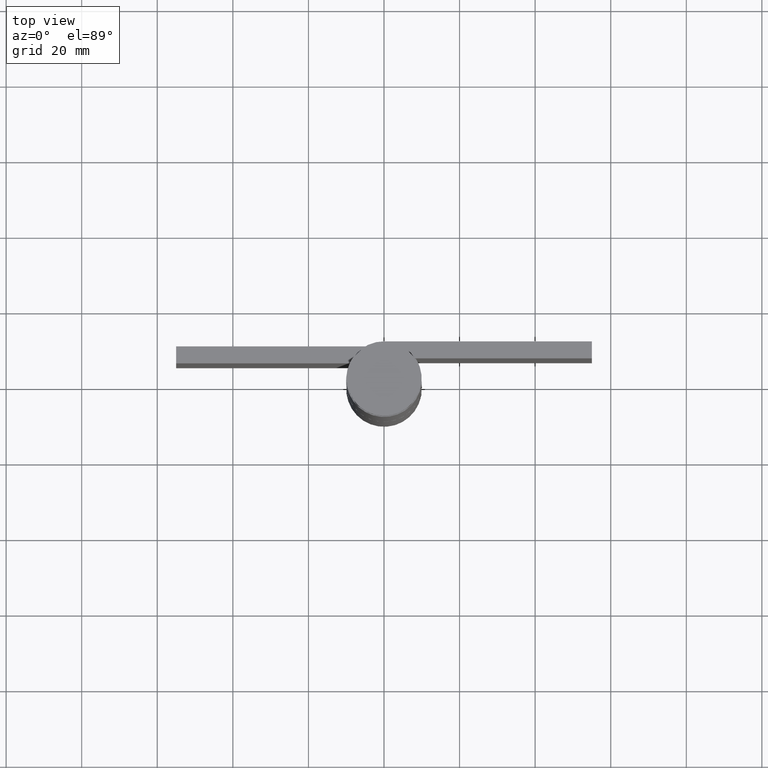
[diagram: clean part render]
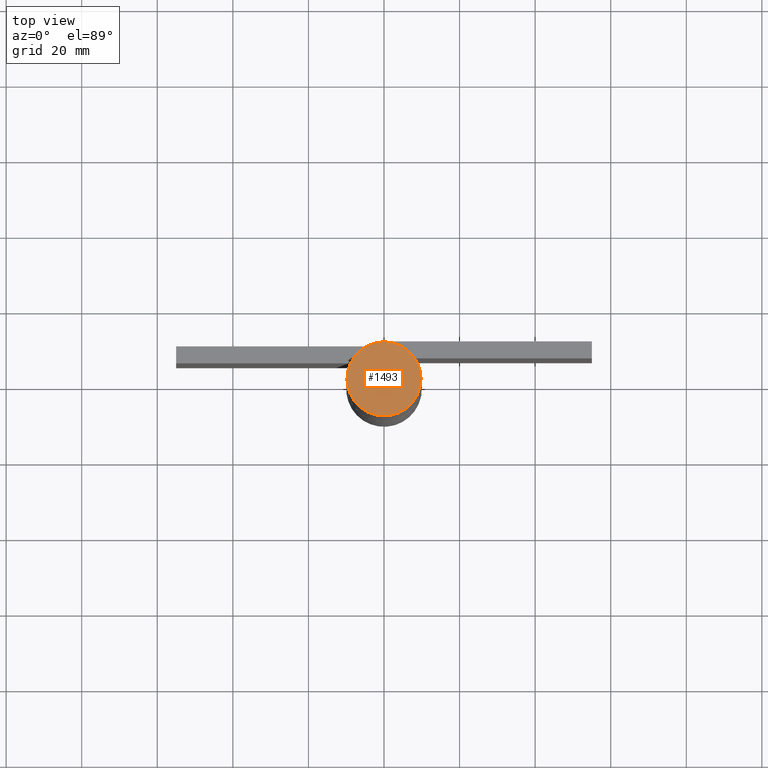
[diagram: same view with one face highlighted and labeled with its STEP entity id]
A machine part, top view. The second image highlights one B-rep face of the part: STEP entity #1493.
In plain terms, the highlighted face is a freeform B-spline surface patch.
Its self-contained STEP definition (entity closure, byte-faithful):
#1452=CARTESIAN_POINT('',(-10.776774334124189,-10.776774334123610,153.999985000000010));
#1453=CARTESIAN_POINT('',(10.776774509325330,-10.776774334123610,153.999985000000010));
#1454=CARTESIAN_POINT('',(-10.776774334124189,10.776774509324749,153.999985000000010));
#1455=CARTESIAN_POINT('',(10.776774509325330,10.776774509324749,153.999985000000010));
#1456=B_SPLINE_SURFACE_WITH_KNOTS('',1,1,((#1452,#1454),(#1453,#1455)),.UNSPECIFIED.,.F.,.F.,.U.,(2,2),(2,2),(0.0,21.553548843449519),(0.0,21.553548843448361),.UNSPECIFIED.);
#1457=CARTESIAN_POINT('',(9.797958000000001,0.0,153.999985000000010));
#1458=VERTEX_POINT('',#1457);
#1459=CARTESIAN_POINT('',(-9.797958000000001,0.0,153.999985000000010));
#1460=VERTEX_POINT('',#1459);
#1461=CARTESIAN_POINT('',(9.797958000000001,0.0,153.999985000000010));
#1462=CARTESIAN_POINT('',(9.797958000000001,-9.797958000000001,153.999984999999980));
#1463=CARTESIAN_POINT('',(0.0,-9.797958000000001,153.999985000000010));
#1464=CARTESIAN_POINT('',(-9.797958000000001,-9.797958000000001,153.999984999999980));
#1465=CARTESIAN_POINT('',(-9.797958000000001,0.0,153.999985000000010));
#1473=(BOUNDED_CURVE()B_SPLINE_CURVE(2,(#1461,#1462,#1463,#1464,#1465),.UNSPECIFIED.,.F.,.U.)B_SPLINE_CURVE_WITH_KNOTS((3,2,3),(0.500000000000000,0.750000000000000,1.0),.UNSPECIFIED.)CURVE()GEOMETRIC_REPRESENTATION_ITEM()RATIONAL_B_SPLINE_CURVE((1.0,0.707106781186548,1.0,0.707106781186548,1.0))REPRESENTATION_ITEM(''));
#1474=EDGE_CURVE('',#1458,#1460,#1473,.T.);
#1475=ORIENTED_EDGE('',*,*,#1474,.F.);
#1476=CARTESIAN_POINT('',(-9.797958000000001,0.0,153.999985000000010));
#1477=CARTESIAN_POINT('',(-9.797958000000001,9.797958000000001,153.999984999999980));
#1478=CARTESIAN_POINT('',(0.0,9.797958000000001,153.999985000000010));
#1479=CARTESIAN_POINT('',(9.797958000000001,9.797958000000001,153.999984999999980));
#1480=CARTESIAN_POINT('',(9.797958000000001,0.0,153.999985000000010));
#1488=(BOUNDED_CURVE()B_SPLINE_CURVE(2,(#1476,#1477,#1478,#1479,#1480),.UNSPECIFIED.,.F.,.U.)B_SPLINE_CURVE_WITH_KNOTS((3,2,3),(0.0,0.250000000000000,0.500000000000000),.UNSPECIFIED.)CURVE()GEOMETRIC_REPRESENTATION_ITEM()RATIONAL_B_SPLINE_CURVE((1.0,0.707106781186548,1.0,0.707106781186548,1.0))REPRESENTATION_ITEM(''));
#1489=EDGE_CURVE('',#1460,#1458,#1488,.T.);
#1490=ORIENTED_EDGE('',*,*,#1489,.F.);
#1491=EDGE_LOOP('',(#1475,#1490));
#1492=FACE_OUTER_BOUND('',#1491,.T.);
#1493=ADVANCED_FACE('',(#1492),#1456,.T.);